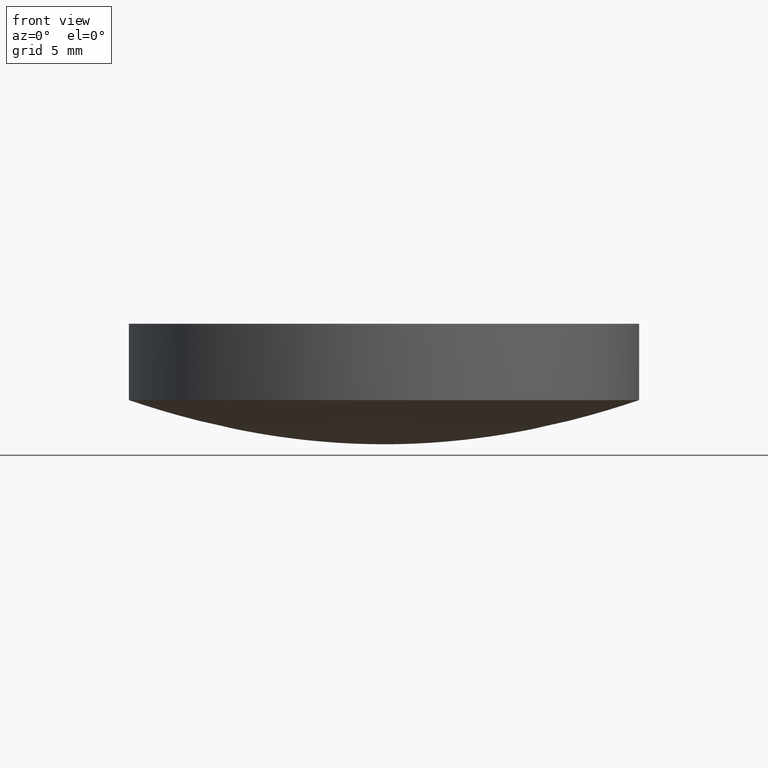
[diagram: clean part render]
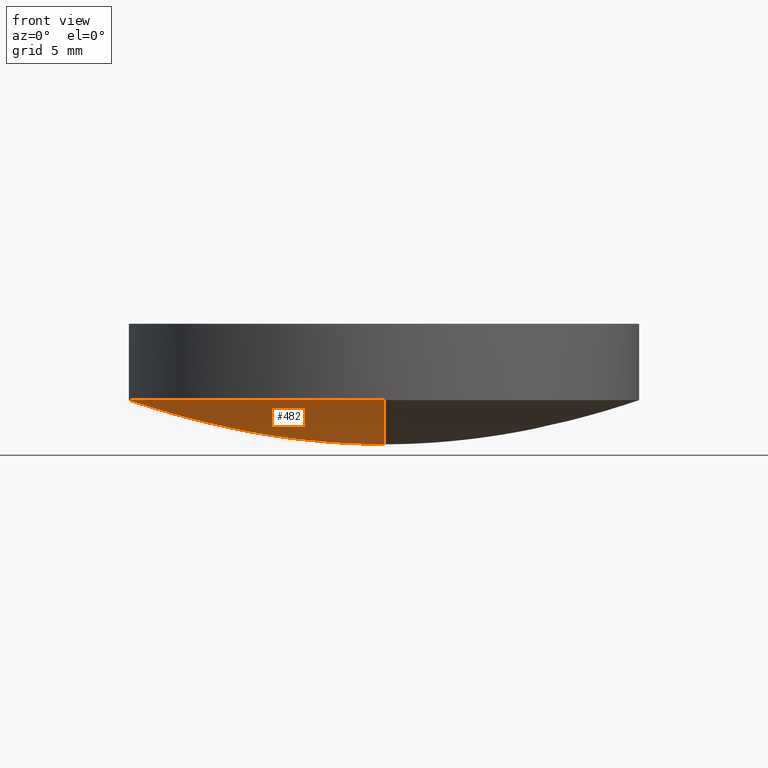
[diagram: same view with one face highlighted and labeled with its STEP entity id]
A machine part, front view. The second image highlights one B-rep face of the part: STEP entity #482.
In plain terms, the highlighted face is a freeform B-spline surface patch.
Its self-contained STEP definition (entity closure, byte-faithful):
#1 = CARTESIAN_POINT ( 'NONE',  ( -3.241005728572560246E-17, -0.2646482014919789849, 0.000000000000000000 ) ) ;
#4 = CARTESIAN_POINT ( 'NONE',  ( 12.00034429507980072, -2.204427484445339934E-15, 1.961206610540939810 ) ) ;
#5 = DIRECTION ( 'NONE',  ( -0.000000000000000000, -0.000000000000000000, -1.000000000000000000 ) ) ;
#8 = CARTESIAN_POINT ( 'NONE',  ( 0.000000000000000000, 5.999939165251210405, 0.4967461427249240669 ) ) ;
#9 = VERTEX_POINT ( 'NONE', #460 ) ;
#10 = CARTESIAN_POINT ( 'NONE',  ( -5.117495180305819957, 5.117495180305819957, 0.3610946254766859709 ) ) ;
#12 = CARTESIAN_POINT ( 'NONE',  ( 0.000000000000000000, 8.293636240054830466, 0.9473380225862650938 ) ) ;
#14 = CARTESIAN_POINT ( 'NONE',  ( -5.999939165251211293, -5.999939165251200635, 0.4967461427249240669 ) ) ;
#18 = CARTESIAN_POINT ( 'NONE',  ( 5.117495180305819957, 5.117495180305819957, 0.3610946254766859709 ) ) ;
#20 = CARTESIAN_POINT ( 'NONE',  ( -3.529323060183090277, 3.529323060183090277, 0.1705053634074679969 ) ) ;
#22 = CARTESIAN_POINT ( 'NONE',  ( 0.000000000000000000, 0.000000000000000000, 0.000000000000000000 ) ) ;
#24 = CARTESIAN_POINT ( 'NONE',  ( -1.189029927616370324E-16, -0.9709166173007780509, 0.007826623216660749671 ) ) ;
#26 = CARTESIAN_POINT ( 'NONE',  ( 3.529323060183090277, 3.529323060183090277, 0.1705053634074679969 ) ) ;
#28 = CARTESIAN_POINT ( 'NONE',  ( 0.000000000000000000, 4.411807035218689776, 0.2678392450587179785 ) ) ;
#34 = CARTESIAN_POINT ( 'NONE',  ( -1.555301434917141588E-15, -12.70000000000000462, 2.197451818612039975 ) ) ;
#36 = CARTESIAN_POINT ( 'NONE',  ( -1.469618322963560219E-15, -12.00034429507980072, 1.961206610540939810 ) ) ;
#39 = CARTESIAN_POINT ( 'NONE',  ( -3.457931732471180000E-16, -2.823615539499820137, 0.1081007503329499964 ) ) ;
#40 = VERTEX_POINT ( 'NONE', #178 ) ;
#43 = CARTESIAN_POINT ( 'NONE',  ( 0.000000000000000000, 12.00034429507980072, 1.961206610540939810 ) ) ;
#44 = DIRECTION ( 'NONE',  ( -0.000000000000000000, -0.000000000000000000, -1.000000000000000000 ) ) ;
#47 = CARTESIAN_POINT ( 'NONE',  ( 0.000000000000000000, 5.117495180305819957, 0.3610946254766860264 ) ) ;
#49 = B_SPLINE_CURVE_WITH_KNOTS ( 'NONE', 3,
 ( #414, #128, #503, #495, #365, #292, #81, #201, #325, #252, #408, #320, #405, #204, #411, #168, #450 ),
 .UNSPECIFIED., .F., .F.,
 ( 4, 1, 1, 1, 1, 1, 1, 1, 1, 1, 1, 1, 1, 1, 4 ),
 ( 0.000000000000000000, 0.1711261176727990052, 0.2135614419187649993, 0.2980152312877710208, 0.3400336964108119919, 0.4237076803100590094, 0.4653631990862669987, 0.5483733313384220320, 0.5897279448143709635, 0.6722051610619159678, 0.7133277638335130399, 0.7954152136409540219, 0.8363800606767990420, 0.9386724538563220310, 1.000000000000000000 ),
 .UNSPECIFIED. ) ;
#50 = CARTESIAN_POINT ( 'NONE',  ( -9.175968922900919367, -9.175968922900919367, 1.157604965641559902 ) ) ;
#52 = EDGE_CURVE ( 'NONE', #118, #9, #334, .T. ) ;
#54 = CARTESIAN_POINT ( 'NONE',  ( 7.587997314144440786, -1.393892493405849964E-15, 0.7937850246568419754 ) ) ;
#57 = CARTESIAN_POINT ( 'NONE',  ( -6.705604643652271157, -6.705604643652271157, 0.6204309067409240486 ) ) ;
#59 = CARTESIAN_POINT ( 'NONE',  ( -4.322174188810160128E-16, -3.529323060183089833, 0.1705053634074680247 ) ) ;
#61 = CARTESIAN_POINT ( 'NONE',  ( -0.9709166173007770517, 0.9709166173007780509, 0.007826623216660751406 ) ) ;
#63 = CARTESIAN_POINT ( 'NONE',  ( 0.2646482014919789294, -0.2646482014919789294, 0.000000000000000000 ) ) ;
#66 = CARTESIAN_POINT ( 'NONE',  ( -4.411807035218689776, -4.411807035218680006, 0.2678392450587179230 ) ) ;
#69 = CARTESIAN_POINT ( 'NONE',  ( 1.853068808560519809, -1.853068808560519809, 0.04368035160071269407 ) ) ;
#76 = CARTESIAN_POINT ( 'NONE',  ( 0.000000000000000000, 11.12050896531350119, 1.686076382450860001 ) ) ;
#79 = CARTESIAN_POINT ( 'NONE',  ( -12.69999999999999929, 7.776507174585690191E-16, 2.197451818612039975 ) ) ;
#81 = CARTESIAN_POINT ( 'NONE',  ( 0.000000000000000000, 7.587997314144440786, 0.7937850246568419754 ) ) ;
#86 = CARTESIAN_POINT ( 'NONE',  ( 12.69999999999999929, -2.332952152375710015E-15, 2.197451818612039975 ) ) ;
#88 = CARTESIAN_POINT ( 'NONE',  ( -11.12050896531350119, 6.809347854630319951E-16, 1.686076382450860001 ) ) ;
#89 = ORIENTED_EDGE ( 'NONE', *, *, #328, .F. ) ;
#90 = CARTESIAN_POINT ( 'NONE',  ( 5.999939165251210405, -1.102170944070560086E-15, 0.4967461427249240669 ) ) ;
#93 = CARTESIAN_POINT ( 'NONE',  ( -9.292616622705699954E-16, -7.587997314144440786, 0.7937850246568419754 ) ) ;
#97 = CARTESIAN_POINT ( 'NONE',  ( 9.881579680847281111, -9.881579680847281111, 1.340326071960550092 ) ) ;
#100 = CARTESIAN_POINT ( 'NONE',  ( -8.293636240054828690, 8.293636240054828690, 0.9473380225862649828 ) ) ;
#102 = CARTESIAN_POINT ( 'NONE',  ( 6.705604643652271157, -1.231799589479459969E-15, 0.6204309067409240486 ) ) ;
#105 = CARTESIAN_POINT ( 'NONE',  ( -0.2646482014919789294, 0.2646482014919789294, 0.000000000000000000 ) ) ;
#107 = CARTESIAN_POINT ( 'NONE',  ( 0.000000000000000000, 2.823615539499820137, 0.1081007503329499964 ) ) ;
#109 = CARTESIAN_POINT ( 'NONE',  ( -2.269354785003439840E-16, -1.853068808560520031, 0.04368035160071270101 ) ) ;
#114 = CARTESIAN_POINT ( 'NONE',  ( 0.000000000000000000, 0.000000000000000000, 0.000000000000000000 ) ) ;
#116 = CARTESIAN_POINT ( 'NONE',  ( 0.000000000000000000, 1.853068808560520031, 0.04368035160071270101 ) ) ;
#118 = VERTEX_POINT ( 'NONE', #34 ) ;
#123 = CARTESIAN_POINT ( 'NONE',  ( -4.322174188810160128E-16, -3.529323060183089833, 0.1705053634074680247 ) ) ;
#128 = CARTESIAN_POINT ( 'NONE',  ( 0.000000000000000000, 12.00034429507980072, 1.961206610540939810 ) ) ;
#129 = CARTESIAN_POINT ( 'NONE',  ( -9.292616622705699954E-16, -7.587997314144440786, 0.7937850246568419754 ) ) ;
#133 = CARTESIAN_POINT ( 'NONE',  ( -7.347806293803730947E-16, -5.999939165251210405, 0.4967461427249240669 ) ) ;
#135 = CARTESIAN_POINT ( 'NONE',  ( 0.000000000000000000, 7.587997314144440786, 0.7937850246568419754 ) ) ;
#138 = CARTESIAN_POINT ( 'NONE',  ( 0.000000000000000000, 5.117495180305819957, 0.3610946254766860264 ) ) ;
#142 = CARTESIAN_POINT ( 'NONE',  ( -9.881579680847281111, 9.881579680847281111, 1.340326071960550092 ) ) ;
#144 = CARTESIAN_POINT ( 'NONE',  ( -1.015677507467560091E-15, -8.293636240054830466, 0.9473380225862650938 ) ) ;
#147 = CARTESIAN_POINT ( 'NONE',  ( 9.881579680847279334, -1.815216739000370189E-15, 1.340326071960550092 ) ) ;
#149 = CARTESIAN_POINT ( 'NONE',  ( -0.9709166173007780509, -0.9709166173007770517, 0.007826623216660751406 ) ) ;
#151 = CARTESIAN_POINT ( 'NONE',  ( -3.529323060183090277, -3.529323060183090277, 0.1705053634074679969 ) ) ;
#154 = CARTESIAN_POINT ( 'NONE',  ( 1.853068808560519809, 1.853068808560519809, 0.04368035160071269407 ) ) ;
#156 = CARTESIAN_POINT ( 'NONE',  ( 0.000000000000000000, 1.853068808560520031, 0.04368035160071270101 ) ) ;
#158 = EDGE_LOOP ( 'NONE', ( #89, #420, #280, #333 ) ) ;
#160 = CARTESIAN_POINT ( 'NONE',  ( 0.000000000000000000, 0.000000000000000000, 0.000000000000000000 ) ) ;
#162 = EDGE_CURVE ( 'NONE', #9, #234, #225, .T. ) ;
#164 = CARTESIAN_POINT ( 'NONE',  ( -1.189029927616370324E-16, -0.9709166173007780509, 0.007826623216660749671 ) ) ;
#166 = CARTESIAN_POINT ( 'NONE',  ( 11.12050896531349942, 11.12050896531349942, 1.686076382450860001 ) ) ;
#168 = CARTESIAN_POINT ( 'NONE',  ( 0.000000000000000000, 0.2646482014919789849, 0.000000000000000000 ) ) ;
#169 = CARTESIAN_POINT ( 'NONE',  ( 0.000000000000000000, 0.000000000000000000, 0.000000000000000000 ) ) ;
#172 = CARTESIAN_POINT ( 'NONE',  ( -5.402905364136339613E-16, -4.411807035218689776, 0.2678392450587179785 ) ) ;
#173 = CARTESIAN_POINT ( 'NONE',  ( 1.734723475976807094E-15, -1.345898117247522881E-15, 2.197451818612039975 ) ) ;
#175 = CARTESIAN_POINT ( 'NONE',  ( 12.00034429507980072, 12.00034429507980072, 1.961206610540939588 ) ) ;
#177 = CARTESIAN_POINT ( 'NONE',  ( 0.000000000000000000, 11.12050896531350119, 1.686076382450860001 ) ) ;
#178 = CARTESIAN_POINT ( 'NONE',  ( 0.000000000000000000, 0.000000000000000000, 0.000000000000000000 ) ) ;
#179 = CARTESIAN_POINT ( 'NONE',  ( 5.117495180305819957, -5.117495180305819957, 0.3610946254766859709 ) ) ;
#181 = CARTESIAN_POINT ( 'NONE',  ( -5.999939165251210405, 3.673903146901869911E-16, 0.4967461427249240669 ) ) ;
#184 = CARTESIAN_POINT ( 'NONE',  ( -6.267124092213530108E-16, -5.117495180305819957, 0.3610946254766860264 ) ) ;
#187 = CARTESIAN_POINT ( 'NONE',  ( 8.293636240054830466, -1.523516261201350195E-15, 0.9473380225862650938 ) ) ;
#189 = CARTESIAN_POINT ( 'NONE',  ( 4.411807035218689776, -8.104358046204509913E-16, 0.2678392450587179785 ) ) ;
#191 = CARTESIAN_POINT ( 'NONE',  ( 0.000000000000000000, 0.000000000000000000, 0.000000000000000000 ) ) ;
#193 = CARTESIAN_POINT ( 'NONE',  ( 0.000000000000000000, 0.9709166173007780509, 0.007826623216660749671 ) ) ;
#196 = CARTESIAN_POINT ( 'NONE',  ( -1.853068808560520031, 1.134677392501719920E-16, 0.04368035160071270101 ) ) ;
#198 = CARTESIAN_POINT ( 'NONE',  ( -3.241005728572560246E-17, -0.2646482014919789849, 0.000000000000000000 ) ) ;
#201 = CARTESIAN_POINT ( 'NONE',  ( 0.000000000000000000, 6.705604643652271157, 0.6204309067409240486 ) ) ;
#202 = CARTESIAN_POINT ( 'NONE',  ( 11.12050896531350119, -2.042804356389100028E-15, 1.686076382450860001 ) ) ;
#204 = CARTESIAN_POINT ( 'NONE',  ( 0.000000000000000000, 1.853068808560520031, 0.04368035160071270101 ) ) ;
#205 = CARTESIAN_POINT ( 'NONE',  ( 0.000000000000000000, 12.00034429507980072, 1.961206610540939810 ) ) ;
#212 = CARTESIAN_POINT ( 'NONE',  ( -12.00034429507980072, 12.00034429507980072, 1.961206610540939588 ) ) ;
#215 = CARTESIAN_POINT ( 'NONE',  ( 6.705604643652271157, 6.705604643652271157, 0.6204309067409240486 ) ) ;
#218 = CARTESIAN_POINT ( 'NONE',  ( -7.587997314144440786, -7.587997314144440786, 0.7937850246568420864 ) ) ;
#220 = CARTESIAN_POINT ( 'NONE',  ( 7.587997314144440786, -7.587997314144440786, 0.7937850246568420864 ) ) ;
#223 = CARTESIAN_POINT ( 'NONE',  ( 6.705604643652271157, -6.705604643652271157, 0.6204309067409240486 ) ) ;
#225 = CIRCLE ( 'NONE', #479, 12.70000000000000284 ) ;
#226 = CARTESIAN_POINT ( 'NONE',  ( -5.117495180305819957, 3.133562046106770477E-16, 0.3610946254766860264 ) ) ;
#228 = CARTESIAN_POINT ( 'NONE',  ( -1.853068808560519809, -1.853068808560519809, 0.04368035160071269407 ) ) ;
#230 = CARTESIAN_POINT ( 'NONE',  ( 0.9709166173007770517, -0.9709166173007780509, 0.007826623216660751406 ) ) ;
#232 = CARTESIAN_POINT ( 'NONE',  ( -5.402905364136339613E-16, -4.411807035218689776, 0.2678392450587179785 ) ) ;
#234 = VERTEX_POINT ( 'NONE', #367 ) ;
#235 = CARTESIAN_POINT ( 'NONE',  ( -3.457931732471180000E-16, -2.823615539499820137, 0.1081007503329499964 ) ) ;
#239 = CARTESIAN_POINT ( 'NONE',  ( 2.823615539499820137, -5.186897598706770001E-16, 0.1081007503329499964 ) ) ;
#245 = CARTESIAN_POINT ( 'NONE',  ( -1.361869570926060046E-15, -11.12050896531350119, 1.686076382450860001 ) ) ;
#252 = CARTESIAN_POINT ( 'NONE',  ( 0.000000000000000000, 5.117495180305819957, 0.3610946254766860264 ) ) ;
#253 = CARTESIAN_POINT ( 'NONE',  ( 12.69999999999999929, 12.69999999999999929, 2.197451818612039975 ) ) ;
#255 = CARTESIAN_POINT ( 'NONE',  ( -11.12050896531349942, -11.12050896531349942, 1.686076382450860001 ) ) ;
#257 = CARTESIAN_POINT ( 'NONE',  ( 5.999939165251211293, 5.999939165251200635, 0.4967461427249240669 ) ) ;
#260 = CARTESIAN_POINT ( 'NONE',  ( 0.000000000000000000, 9.175968922900919367, 1.157604965641559902 ) ) ;
#262 = CARTESIAN_POINT ( 'NONE',  ( -9.175968922900919367, 9.175968922900919367, 1.157604965641559902 ) ) ;
#264 = CARTESIAN_POINT ( 'NONE',  ( -6.705604643652271157, 4.105998631598190199E-16, 0.6204309067409240486 ) ) ;
#266 = CARTESIAN_POINT ( 'NONE',  ( 9.175968922900928249, 9.175968922900919367, 1.157604965641559902 ) ) ;
#268 = CARTESIAN_POINT ( 'NONE',  ( 0.000000000000000000, 0.2646482014919789849, 0.000000000000000000 ) ) ;
#270 = CARTESIAN_POINT ( 'NONE',  ( 3.529323060183090277, -3.529323060183090277, 0.1705053634074679969 ) ) ;
#272 = CARTESIAN_POINT ( 'NONE',  ( 0.000000000000000000, 0.2646482014919789849, 0.000000000000000000 ) ) ;
#276 = CARTESIAN_POINT ( 'NONE',  ( 0.000000000000000000, 0.000000000000000000, 0.000000000000000000 ) ) ;
#278 = CARTESIAN_POINT ( 'NONE',  ( 0.000000000000000000, 4.411807035218689776, 0.2678392450587179785 ) ) ;
#280 = ORIENTED_EDGE ( 'NONE', *, *, #162, .T. ) ;
#282 = CARTESIAN_POINT ( 'NONE',  ( 12.69999999999999929, -12.69999999999999929, 2.197451818612039975 ) ) ;
#287 = CARTESIAN_POINT ( 'NONE',  ( -1.555301434917140010E-15, -12.69999999999999929, 2.197451818612039975 ) ) ;
#290 = CARTESIAN_POINT ( 'NONE',  ( -6.267124092213530108E-16, -5.117495180305819957, 0.3610946254766860264 ) ) ;
#292 = CARTESIAN_POINT ( 'NONE',  ( 0.000000000000000000, 8.293636240054830466, 0.9473380225862650938 ) ) ;
#296 = CARTESIAN_POINT ( 'NONE',  ( -8.293636240054830466, 5.078387537337820178E-16, 0.9473380225862650938 ) ) ;
#299 = CARTESIAN_POINT ( 'NONE',  ( -7.587997314144440786, 4.646308311352849977E-16, 0.7937850246568419754 ) ) ;
#301 = CARTESIAN_POINT ( 'NONE',  ( 8.293636240054828690, 8.293636240054828690, 0.9473380225862649828 ) ) ;
#303 = CARTESIAN_POINT ( 'NONE',  ( 5.117495180305819957, -9.400686138320300585E-16, 0.3610946254766860264 ) ) ;
#305 = CARTESIAN_POINT ( 'NONE',  ( 0.000000000000000000, 9.881579680847279334, 1.340326071960550092 ) ) ;
#308 = CARTESIAN_POINT ( 'NONE',  ( 1.853068808560520031, -3.404032177505150393E-16, 0.04368035160071270101 ) ) ;
#310 = CARTESIAN_POINT ( 'NONE',  ( -2.823615539499820137, 1.728965866235590000E-16, 0.1081007503329499964 ) ) ;
#312 = CARTESIAN_POINT ( 'NONE',  ( -4.411807035218689776, 2.701452682068169807E-16, 0.2678392450587179785 ) ) ;
#315 = CARTESIAN_POINT ( 'NONE',  ( -4.411807035218689776, 4.411807035218689776, 0.2678392450587179230 ) ) ;
#316 = AXIS2_PLACEMENT_3D ( 'NONE', #373, #44, #423 ) ;
#318 = CARTESIAN_POINT ( 'NONE',  ( 2.823615539499820581, -2.823615539499820581, 0.1081007503329500102 ) ) ;
#320 = CARTESIAN_POINT ( 'NONE',  ( 0.000000000000000000, 3.529323060183089833, 0.1705053634074680247 ) ) ;
#321 = CARTESIAN_POINT ( 'NONE',  ( -12.69999999999999929, -12.69999999999999929, 2.197451818612039975 ) ) ;
#323 = CARTESIAN_POINT ( 'NONE',  ( -2.269354785003439840E-16, -1.853068808560520031, 0.04368035160071270101 ) ) ;
#325 = CARTESIAN_POINT ( 'NONE',  ( 0.000000000000000000, 5.999939165251210405, 0.4967461427249240669 ) ) ;
#328 = EDGE_CURVE ( 'NONE', #118, #40, #385, .T. ) ;
#329 = CARTESIAN_POINT ( 'NONE',  ( 0.000000000000000000, 12.69999999999999929, 2.197451818612039975 ) ) ;
#332 = FACE_OUTER_BOUND ( 'NONE', #158, .T. ) ;
#333 = ORIENTED_EDGE ( 'NONE', *, *, #500, .T. ) ;
#334 = CIRCLE ( 'NONE', #316, 12.70000000000000284 ) ;
#335 = CARTESIAN_POINT ( 'NONE',  ( -9.881579680847279334, 6.050722463334570254E-16, 1.340326071960550092 ) ) ;
#338 = CARTESIAN_POINT ( 'NONE',  ( -7.587997314144440786, 7.587997314144440786, 0.7937850246568420864 ) ) ;
#342 = CARTESIAN_POINT ( 'NONE',  ( 9.881579680847281111, 9.881579680847281111, 1.340326071960550092 ) ) ;
#346 = CARTESIAN_POINT ( 'NONE',  ( 0.000000000000000000, 9.175968922900919367, 1.157604965641559902 ) ) ;
#348 = CARTESIAN_POINT ( 'NONE',  ( -1.210144492666909909E-15, -9.881579680847279334, 1.340326071960550092 ) ) ;
#350 = CARTESIAN_POINT ( 'NONE',  ( -2.823615539499820581, -2.823615539499820581, 0.1081007503329500102 ) ) ;
#352 = CARTESIAN_POINT ( 'NONE',  ( 0.000000000000000000, 2.823615539499820137, 0.1081007503329499964 ) ) ;
#354 = CARTESIAN_POINT ( 'NONE',  ( 0.000000000000000000, 3.529323060183089833, 0.1705053634074680247 ) ) ;
#358 = CARTESIAN_POINT ( 'NONE',  ( -0.2646482014919789294, -0.2646482014919789294, 0.000000000000000000 ) ) ;
#361 = CARTESIAN_POINT ( 'NONE',  ( 0.000000000000000000, 0.000000000000000000, 0.000000000000000000 ) ) ;
#364 = CARTESIAN_POINT ( 'NONE',  ( -1.123732097050620097E-15, -9.175968922900919367, 1.157604965641559902 ) ) ;
#365 = CARTESIAN_POINT ( 'NONE',  ( 0.000000000000000000, 9.175968922900919367, 1.157604965641559902 ) ) ;
#367 = CARTESIAN_POINT ( 'NONE',  ( -3.851859888774471706E-31, 12.70000000000000284, 2.197451818612039975 ) ) ;
#369 = CARTESIAN_POINT ( 'NONE',  ( -1.555301434917141588E-15, -12.70000000000000462, 2.197451818612039975 ) ) ;
#372 = CARTESIAN_POINT ( 'NONE',  ( -1.015677507467560091E-15, -8.293636240054830466, 0.9473380225862650938 ) ) ;
#373 = CARTESIAN_POINT ( 'NONE',  ( 1.734723475976807094E-15, -1.345898117247522881E-15, 2.197451818612039975 ) ) ;
#374 = CARTESIAN_POINT ( 'NONE',  ( -12.00034429507980072, -12.00034429507980072, 1.961206610540939588 ) ) ;
#376 = CARTESIAN_POINT ( 'NONE',  ( -7.347806293803730947E-16, -5.999939165251210405, 0.4967461427249240669 ) ) ;
#378 = CARTESIAN_POINT ( 'NONE',  ( -5.117495180305819957, -5.117495180305819957, 0.3610946254766859709 ) ) ;
#380 = CARTESIAN_POINT ( 'NONE',  ( -6.705604643652271157, 6.705604643652271157, 0.6204309067409240486 ) ) ;
#383 = CARTESIAN_POINT ( 'NONE',  ( 0.000000000000000000, 5.999939165251210405, 0.4967461427249240669 ) ) ;
#385 = B_SPLINE_CURVE_WITH_KNOTS ( 'NONE', 3,
 ( #369, #456, #538, #499, #364, #372, #129, #544, #133, #290, #172, #123, #39, #323, #164, #1, #169 ),
 .UNSPECIFIED., .F., .F.,
 ( 4, 1, 1, 1, 1, 1, 1, 1, 1, 1, 1, 1, 1, 1, 4 ),
 ( 0.000000000000000000, 0.1711261176727990052, 0.2135614419187649993, 0.2980152312877710208, 0.3400336964108119919, 0.4237076803100590094, 0.4653631990862669987, 0.5483733313384220320, 0.5897279448143709635, 0.6722051610619159678, 0.7133277638335130399, 0.7954152136409540219, 0.8363800606767990420, 0.9386724538563220310, 1.000000000000000000 ),
 .UNSPECIFIED. ) ;
#388 = CARTESIAN_POINT ( 'NONE',  ( 0.000000000000000000, 9.881579680847279334, 1.340326071960550092 ) ) ;
#390 = CARTESIAN_POINT ( 'NONE',  ( 4.411807035218680006, -4.411807035218689776, 0.2678392450587179230 ) ) ;
#392 = CARTESIAN_POINT ( 'NONE',  ( 0.000000000000000000, 0.000000000000000000, 0.000000000000000000 ) ) ;
#396 = CARTESIAN_POINT ( 'NONE',  ( -1.853068808560519809, 1.853068808560519809, 0.04368035160071269407 ) ) ;
#399 = CARTESIAN_POINT ( 'NONE',  ( 0.000000000000000000, 0.000000000000000000, 0.000000000000000000 ) ) ;
#401 = CARTESIAN_POINT ( 'NONE',  ( 4.411807035218689776, 4.411807035218680006, 0.2678392450587179230 ) ) ;
#405 = CARTESIAN_POINT ( 'NONE',  ( 0.000000000000000000, 2.823615539499820137, 0.1081007503329499964 ) ) ;
#408 = CARTESIAN_POINT ( 'NONE',  ( 0.000000000000000000, 4.411807035218689776, 0.2678392450587179785 ) ) ;
#409 = CARTESIAN_POINT ( 'NONE',  ( 11.12050896531349942, -11.12050896531349942, 1.686076382450860001 ) ) ;
#411 = CARTESIAN_POINT ( 'NONE',  ( 0.000000000000000000, 0.9709166173007780509, 0.007826623216660749671 ) ) ;
#412 = CARTESIAN_POINT ( 'NONE',  ( -12.00034429507980072, 7.348091614817809970E-16, 1.961206610540939810 ) ) ;
#413 = DIRECTION ( 'NONE',  ( -1.000000000000000000, 0.000000000000000000, 0.000000000000000000 ) ) ;
#414 = CARTESIAN_POINT ( 'NONE',  ( -3.851859888774471706E-31, 12.70000000000000284, 2.197451818612039975 ) ) ;
#419 = CARTESIAN_POINT ( 'NONE',  ( 0.000000000000000000, 12.69999999999999929, 2.197451818612039975 ) ) ;
#420 = ORIENTED_EDGE ( 'NONE', *, *, #52, .T. ) ;
#423 = DIRECTION ( 'NONE',  ( -1.000000000000000000, 0.000000000000000000, 0.000000000000000000 ) ) ;
#426 = CARTESIAN_POINT ( 'NONE',  ( -8.293636240054828690, -8.293636240054828690, 0.9473380225862649828 ) ) ;
#430 = CARTESIAN_POINT ( 'NONE',  ( -5.999939165251211293, 5.999939165251211293, 0.4967461427249240669 ) ) ;
#432 = CARTESIAN_POINT ( 'NONE',  ( 9.175968922900919367, -1.685598145575929948E-15, 1.157604965641559902 ) ) ;
#435 = CARTESIAN_POINT ( 'NONE',  ( 0.000000000000000000, 6.705604643652271157, 0.6204309067409240486 ) ) ;
#438 = CARTESIAN_POINT ( 'NONE',  ( -9.881579680847281111, -9.881579680847281111, 1.340326071960550092 ) ) ;
#440 = CARTESIAN_POINT ( 'NONE',  ( -3.529323060183089833, 2.161087094405080064E-16, 0.1705053634074680247 ) ) ;
#443 = CARTESIAN_POINT ( 'NONE',  ( 2.823615539499820581, 2.823615539499820581, 0.1081007503329500102 ) ) ;
#446 = CARTESIAN_POINT ( 'NONE',  ( 0.9709166173007780509, -1.783544891424559924E-16, 0.007826623216660749671 ) ) ;
#448 = CARTESIAN_POINT ( 'NONE',  ( 0.000000000000000000, 0.000000000000000000, 0.000000000000000000 ) ) ;
#450 = CARTESIAN_POINT ( 'NONE',  ( 0.000000000000000000, 0.000000000000000000, 0.000000000000000000 ) ) ;
#453 = CARTESIAN_POINT ( 'NONE',  ( 12.00034429507980072, -12.00034429507980072, 1.961206610540939588 ) ) ;
#456 = CARTESIAN_POINT ( 'NONE',  ( -1.469618322963560219E-15, -12.00034429507980072, 1.961206610540939810 ) ) ;
#460 = CARTESIAN_POINT ( 'NONE',  ( -12.70000000000000107, 6.671230152170136933E-16, 2.197451818612039975 ) ) ;
#461 = CARTESIAN_POINT ( 'NONE',  ( -12.69999999999999929, 12.69999999999999929, 2.197451818612039975 ) ) ;
#468 = CARTESIAN_POINT ( 'NONE',  ( 7.587997314144440786, 7.587997314144440786, 0.7937850246568420864 ) ) ;
#470 = CARTESIAN_POINT ( 'NONE',  ( -8.211997263196380398E-16, -6.705604643652271157, 0.6204309067409240486 ) ) ;
#472 = CARTESIAN_POINT ( 'NONE',  ( 0.000000000000000000, 7.587997314144440786, 0.7937850246568419754 ) ) ;
#475 = CARTESIAN_POINT ( 'NONE',  ( 0.000000000000000000, 8.293636240054830466, 0.9473380225862650938 ) ) ;
#477 = CARTESIAN_POINT ( 'NONE',  ( -9.175968922900919367, 5.618660485253100484E-16, 1.157604965641559902 ) ) ;
#479 = AXIS2_PLACEMENT_3D ( 'NONE', #173, #5, #413 ) ;
#480 = CARTESIAN_POINT ( 'NONE',  ( 0.9709166173007780509, 0.9709166173007770517, 0.007826623216660751406 ) ) ;
#482 = ADVANCED_FACE ( 'NONE', ( #332 ), #506, .T. ) ;
#483 = CARTESIAN_POINT ( 'NONE',  ( 0.000000000000000000, 3.529323060183089833, 0.1705053634074680247 ) ) ;
#486 = CARTESIAN_POINT ( 'NONE',  ( 3.529323060183089833, -6.483261283215241177E-16, 0.1705053634074680247 ) ) ;
#490 = CARTESIAN_POINT ( 'NONE',  ( 0.2646482014919789294, 0.2646482014919789294, 0.000000000000000000 ) ) ;
#493 = CARTESIAN_POINT ( 'NONE',  ( -2.823615539499820581, 2.823615539499820581, 0.1081007503329500102 ) ) ;
#495 = CARTESIAN_POINT ( 'NONE',  ( 0.000000000000000000, 9.881579680847279334, 1.340326071960550092 ) ) ;
#499 = CARTESIAN_POINT ( 'NONE',  ( -1.210144492666909909E-15, -9.881579680847279334, 1.340326071960550092 ) ) ;
#500 = EDGE_CURVE ( 'NONE', #234, #40, #49, .T. ) ;
#503 = CARTESIAN_POINT ( 'NONE',  ( 0.000000000000000000, 11.12050896531350119, 1.686076382450860001 ) ) ;
#506 =( BOUNDED_SURFACE ( )  B_SPLINE_SURFACE ( 3, 2, ( 
 ( #329, #461, #79, #321, #287, #282, #86, #253, #419 ),
 ( #43, #212, #412, #374, #36, #453, #4, #175, #205 ),
 ( #76, #508, #88, #255, #245, #409, #202, #166, #177 ),
 ( #388, #142, #335, #438, #348, #97, #147, #342, #305 ),
 ( #346, #262, #477, #50, #515, #510, #432, #266, #260 ),
 ( #12, #100, #296, #426, #144, #522, #187, #301, #475 ),
 ( #472, #338, #299, #218, #93, #220, #54, #468, #135 ),
 ( #435, #380, #264, #57, #470, #223, #102, #215, #512 ),
 ( #383, #430, #181, #14, #376, #520, #90, #257, #8 ),
 ( #47, #10, #226, #378, #184, #179, #303, #18, #138 ),
 ( #278, #315, #312, #66, #232, #390, #189, #401, #28 ),
 ( #354, #20, #440, #151, #59, #270, #486, #26, #483 ),
 ( #352, #493, #310, #350, #235, #318, #239, #443, #107 ),
 ( #156, #396, #196, #228, #109, #69, #308, #154, #116 ),
 ( #193, #61, #525, #149, #24, #230, #446, #480, #535 ),
 ( #272, #105, #530, #358, #198, #63, #533, #490, #268 ),
 ( #392, #399, #276, #114, #448, #22, #361, #191, #160 ) ),
 .UNSPECIFIED., .F., .T., .F. ) 
 B_SPLINE_SURFACE_WITH_KNOTS ( ( 4, 1, 1, 1, 1, 1, 1, 1, 1, 1, 1, 1, 1, 1, 4 ),
 ( 3, 2, 2, 2, 3 ),
 ( 0.000000000000000000, 0.1711261176727990052, 0.2135614419187649993, 0.2980152312877710208, 0.3400336964108119919, 0.4237076803100590094, 0.4653631990862669987, 0.5483733313384220320, 0.5897279448143709635, 0.6722051610619159678, 0.7133277638335130399, 0.7954152136409540219, 0.8363800606767990420, 0.9386724538563220310, 1.000000000000000000 ),
 ( 0.000000000000000000, 90.00000000000000000, 180.0000000000000000, 270.0000000000000000, 360.0000000000000000 ),
 .UNSPECIFIED. ) 
 GEOMETRIC_REPRESENTATION_ITEM ( )  RATIONAL_B_SPLINE_SURFACE ( (
 ( 1.000000000000000000, 0.7071067811865480168, 1.000000000000000000, 0.7071067811865480168, 1.000000000000000000, 0.7071067811865480168, 1.000000000000000000, 0.7071067811865480168, 1.000000000000000000),
 ( 1.000000000000000000, 0.7071067811865480168, 1.000000000000000000, 0.7071067811865480168, 1.000000000000000000, 0.7071067811865480168, 1.000000000000000000, 0.7071067811865480168, 1.000000000000000000),
 ( 1.000000000000000000, 0.7071067811865480168, 1.000000000000000000, 0.7071067811865480168, 1.000000000000000000, 0.7071067811865480168, 1.000000000000000000, 0.7071067811865480168, 1.000000000000000000),
 ( 1.000000000000000000, 0.7071067811865480168, 1.000000000000000000, 0.7071067811865480168, 1.000000000000000000, 0.7071067811865480168, 1.000000000000000000, 0.7071067811865480168, 1.000000000000000000),
 ( 1.000000000000000000, 0.7071067811865480168, 1.000000000000000000, 0.7071067811865480168, 1.000000000000000000, 0.7071067811865480168, 1.000000000000000000, 0.7071067811865480168, 1.000000000000000000),
 ( 1.000000000000000000, 0.7071067811865480168, 1.000000000000000000, 0.7071067811865480168, 1.000000000000000000, 0.7071067811865480168, 1.000000000000000000, 0.7071067811865480168, 1.000000000000000000),
 ( 1.000000000000000000, 0.7071067811865480168, 1.000000000000000000, 0.7071067811865480168, 1.000000000000000000, 0.7071067811865480168, 1.000000000000000000, 0.7071067811865480168, 1.000000000000000000),
 ( 1.000000000000000000, 0.7071067811865480168, 1.000000000000000000, 0.7071067811865480168, 1.000000000000000000, 0.7071067811865480168, 1.000000000000000000, 0.7071067811865480168, 1.000000000000000000),
 ( 1.000000000000000000, 0.7071067811865480168, 1.000000000000000000, 0.7071067811865480168, 1.000000000000000000, 0.7071067811865480168, 1.000000000000000000, 0.7071067811865480168, 1.000000000000000000),
 ( 1.000000000000000000, 0.7071067811865480168, 1.000000000000000000, 0.7071067811865480168, 1.000000000000000000, 0.7071067811865480168, 1.000000000000000000, 0.7071067811865480168, 1.000000000000000000),
 ( 1.000000000000000000, 0.7071067811865480168, 1.000000000000000000, 0.7071067811865480168, 1.000000000000000000, 0.7071067811865480168, 1.000000000000000000, 0.7071067811865480168, 1.000000000000000000),
 ( 1.000000000000000000, 0.7071067811865480168, 1.000000000000000000, 0.7071067811865480168, 1.000000000000000000, 0.7071067811865480168, 1.000000000000000000, 0.7071067811865480168, 1.000000000000000000),
 ( 1.000000000000000000, 0.7071067811865480168, 1.000000000000000000, 0.7071067811865480168, 1.000000000000000000, 0.7071067811865480168, 1.000000000000000000, 0.7071067811865480168, 1.000000000000000000),
 ( 1.000000000000000000, 0.7071067811865480168, 1.000000000000000000, 0.7071067811865480168, 1.000000000000000000, 0.7071067811865480168, 1.000000000000000000, 0.7071067811865480168, 1.000000000000000000),
 ( 1.000000000000000000, 0.7071067811865480168, 1.000000000000000000, 0.7071067811865480168, 1.000000000000000000, 0.7071067811865480168, 1.000000000000000000, 0.7071067811865480168, 1.000000000000000000),
 ( 1.000000000000000000, 0.7071067811865480168, 1.000000000000000000, 0.7071067811865480168, 1.000000000000000000, 0.7071067811865480168, 1.000000000000000000, 0.7071067811865480168, 1.000000000000000000),
 ( 1.000000000000000000, 0.7071067811865480168, 1.000000000000000000, 0.7071067811865480168, 1.000000000000000000, 0.7071067811865480168, 1.000000000000000000, 0.7071067811865480168, 1.000000000000000000) ) ) 
 REPRESENTATION_ITEM ( '' )  SURFACE ( )  );
#508 = CARTESIAN_POINT ( 'NONE',  ( -11.12050896531349942, 11.12050896531349942, 1.686076382450860001 ) ) ;
#510 = CARTESIAN_POINT ( 'NONE',  ( 9.175968922900919367, -9.175968922900928249, 1.157604965641559902 ) ) ;
#512 = CARTESIAN_POINT ( 'NONE',  ( 0.000000000000000000, 6.705604643652271157, 0.6204309067409240486 ) ) ;
#515 = CARTESIAN_POINT ( 'NONE',  ( -1.123732097050620097E-15, -9.175968922900919367, 1.157604965641559902 ) ) ;
#520 = CARTESIAN_POINT ( 'NONE',  ( 5.999939165251200635, -5.999939165251211293, 0.4967461427249240669 ) ) ;
#522 = CARTESIAN_POINT ( 'NONE',  ( 8.293636240054828690, -8.293636240054828690, 0.9473380225862649828 ) ) ;
#525 = CARTESIAN_POINT ( 'NONE',  ( -0.9709166173007780509, 5.945149638081860249E-17, 0.007826623216660749671 ) ) ;
#530 = CARTESIAN_POINT ( 'NONE',  ( -0.2646482014919789849, 1.620502864286280123E-17, 0.000000000000000000 ) ) ;
#533 = CARTESIAN_POINT ( 'NONE',  ( 0.2646482014919789849, -4.861508592858829892E-17, 0.000000000000000000 ) ) ;
#535 = CARTESIAN_POINT ( 'NONE',  ( 0.000000000000000000, 0.9709166173007780509, 0.007826623216660749671 ) ) ;
#538 = CARTESIAN_POINT ( 'NONE',  ( -1.361869570926060046E-15, -11.12050896531350119, 1.686076382450860001 ) ) ;
#544 = CARTESIAN_POINT ( 'NONE',  ( -8.211997263196380398E-16, -6.705604643652271157, 0.6204309067409240486 ) ) ;